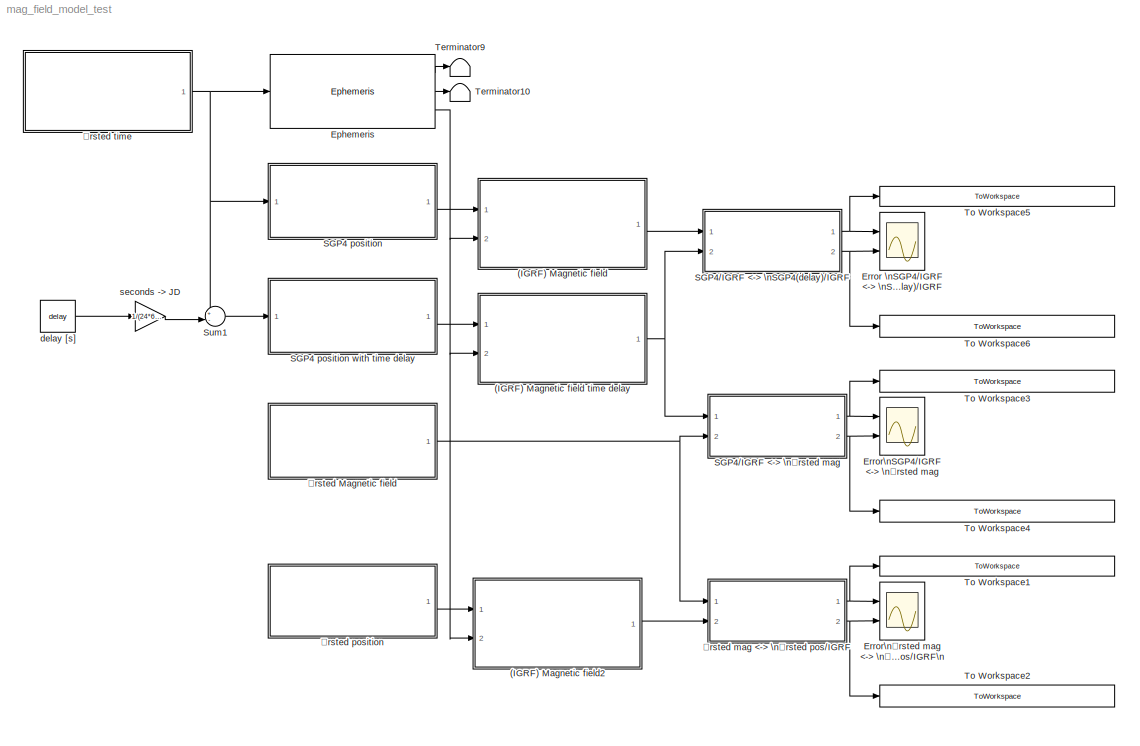
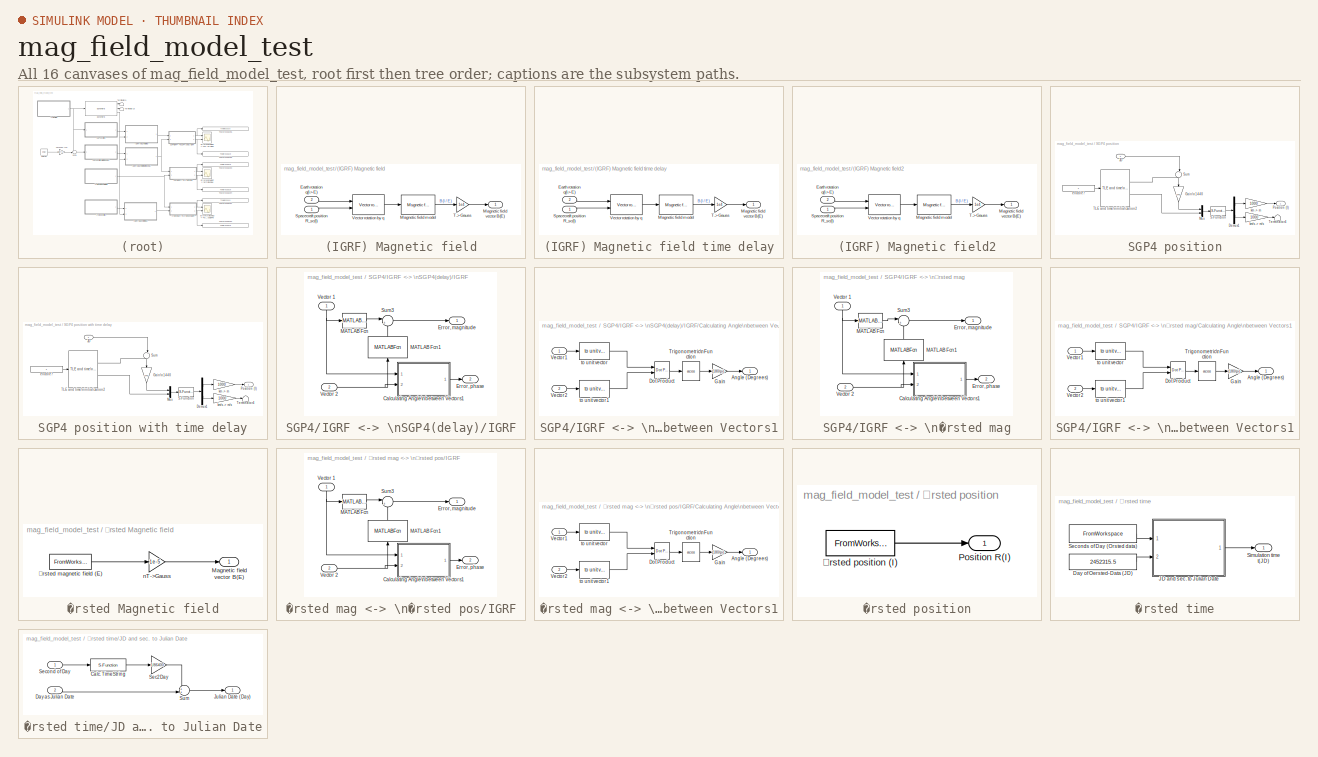
[diagram: thumbnail index - all 16 canvases of the model, root first then tree order]
MODEL mag_field_model_test
KIND model
BLOCK [SubSystem] (IGRF) Magnetic field
  AncestorBlock = orbit_and_magfield_models_lib/Orbit and Magnetic field models/(IGRF) Magnetic field
  MinAlgLoopOccurrences = off
  Ports = [2, 1]
  RTWSystemCode = Auto
  TreatAsAtomicUnit = on
BLOCK [SubSystem] (IGRF) Magnetic field time delay
  AncestorBlock = orbit_and_magfield_models_lib/Orbit and Magnetic field models/(IGRF) Magnetic field
  MinAlgLoopOccurrences = off
  Ports = [2, 1]
  RTWSystemCode = Auto
  TreatAsAtomicUnit = on
BLOCK [Inport] (IGRF) Magnetic field time delay/Earth rotation q(I->E)
  IconDisplay = Port number
  LatchInput = off
  Port = 2
BLOCK [Reference] (IGRF) Magnetic field time delay/Magnetic field model  REF=magnetic_field_model_lib/Msgnetic field model
  Ports = [1, 1]
  ShowPortLabels = on
  SourceBlock = magnetic_field_model_lib/Msgnetic field model
  SourceType = SubSystem
BLOCK [Outport] (IGRF) Magnetic field time delay/Magnetic field vector B(E)
  BusOutputAsStruct = off
  IconDisplay = Port number
BLOCK [Inport] (IGRF) Magnetic field time delay/Spacecraft position R_sc(I)
  IconDisplay = Port number
  LatchInput = off
  Port = 1
BLOCK [Gain] (IGRF) Magnetic field time delay/T->Gauss
  Gain = 1e4
BLOCK [Reference] (IGRF) Magnetic field time delay/Vector rotation by q  REF=components_lib/Math utilities/Vector operations/Vector rotation by q  (lib defined in mdl_419550584dda)
  Ports = [2, 1]
  ShowPortLabels = on
  SourceBlock = components_lib/Math utilities/Vector operations/Vector rotation by q
  SourceType = SubSystem
BLOCK [Inport] (IGRF) Magnetic field/Earth rotation q(I->E)
  IconDisplay = Port number
  LatchInput = off
  Port = 2
BLOCK [Reference] (IGRF) Magnetic field/Magnetic field model  REF=magnetic_field_model_lib/Msgnetic field model
  Ports = [1, 1]
  ShowPortLabels = on
  SourceBlock = magnetic_field_model_lib/Msgnetic field model
  SourceType = SubSystem
BLOCK [Outport] (IGRF) Magnetic field/Magnetic field vector B(E)
  BusOutputAsStruct = off
  IconDisplay = Port number
BLOCK [Inport] (IGRF) Magnetic field/Spacecraft position R_sc(I)
  IconDisplay = Port number
  LatchInput = off
  Port = 1
BLOCK [Gain] (IGRF) Magnetic field/T->Gauss
  Gain = 1e4
BLOCK [Reference] (IGRF) Magnetic field/Vector rotation by q  REF=components_lib/Math utilities/Vector operations/Vector rotation by q  (lib defined in mdl_419550584dda)
  Ports = [2, 1]
  ShowPortLabels = on
  SourceBlock = components_lib/Math utilities/Vector operations/Vector rotation by q
  SourceType = SubSystem
BLOCK [SubSystem] (IGRF) Magnetic field2
  AncestorBlock = orbit_and_magfield_models_lib/Orbit and Magnetic field models/(IGRF) Magnetic field
  MinAlgLoopOccurrences = off
  Ports = [2, 1]
  RTWSystemCode = Auto
  TreatAsAtomicUnit = on
BLOCK [Inport] (IGRF) Magnetic field2/Earth rotation q(I->E)
  IconDisplay = Port number
  LatchInput = off
  Port = 2
BLOCK [Reference] (IGRF) Magnetic field2/Magnetic field model  REF=magnetic_field_model_lib/Msgnetic field model
  Ports = [1, 1]
  ShowPortLabels = on
  SourceBlock = magnetic_field_model_lib/Msgnetic field model
  SourceType = SubSystem
BLOCK [Outport] (IGRF) Magnetic field2/Magnetic field vector B(E)
  BusOutputAsStruct = off
  IconDisplay = Port number
BLOCK [Inport] (IGRF) Magnetic field2/Spacecraft position R_sc(I)
  IconDisplay = Port number
  LatchInput = off
  Port = 1
BLOCK [Gain] (IGRF) Magnetic field2/T->Gauss
  Gain = 1e4
BLOCK [Reference] (IGRF) Magnetic field2/Vector rotation by q  REF=components_lib/Math utilities/Vector operations/Vector rotation by q  (lib defined in mdl_419550584dda)
  Ports = [2, 1]
  ShowPortLabels = on
  SourceBlock = components_lib/Math utilities/Vector operations/Vector rotation by q
  SourceType = SubSystem
BLOCK [Reference] Ephemeris  REF=ephemeris_lib/Ephemeris
  Ports = [1, 3]
  ShowPortLabels = on
  SourceBlock = ephemeris_lib/Ephemeris
  SourceType = SubSystem
BLOCK [Scope] Error \nSGP4//IGRF <-> \nSGP4(delay)//IGRF
  DataFormat = Structure
  LimitDataPoints = off
  NumInputPorts = 2
  Ports = [2]
  SaveName = ONBOARDerror
  TimeRange = 10000
  YMax = 900~2
  YMin = 0~0.8
  ZoomMode = yonly
BLOCK [Scope] Error\nSGP4//IGRF <-> \nØrsted mag
  DataFormat = Structure
  LimitDataPoints = off
  NumInputPorts = 2
  Ports = [2]
  SaveName = ONBOARDerror1
  TimeRange = 10000
  YMax = 45000~94.5
  YMin = 0~85.5
  ZoomMode = yonly
BLOCK [Scope] Error\nØrsted mag <-> \nØrsted pos//IGRF\n
  DataFormat = Structure
  LimitDataPoints = off
  NumInputPorts = 2
  Ports = [2]
  SaveName = ONBOARDerror2
  TimeRange = 10000
  YMax = 45000~94.5
  YMin = 0~85.5
  ZoomMode = yonly
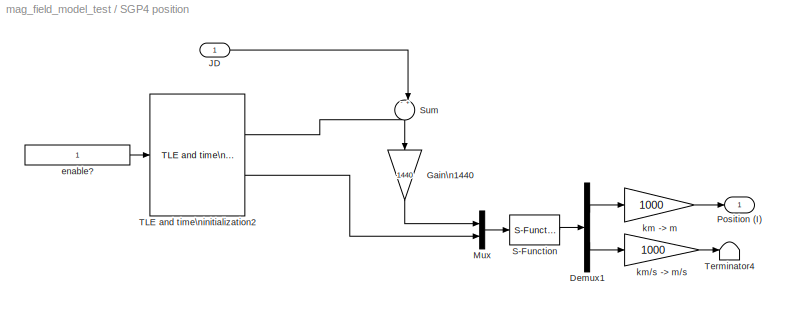
BLOCK [SubSystem] SGP4 position
  MinAlgLoopOccurrences = off
  Ports = [1, 1]
  RTWSystemCode = Auto
  TreatAsAtomicUnit = on
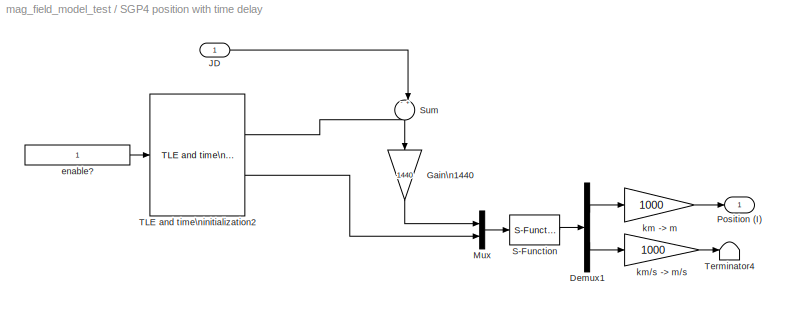
BLOCK [SubSystem] SGP4 position with time delay
  MinAlgLoopOccurrences = off
  Ports = [1, 1]
  RTWSystemCode = Auto
  TreatAsAtomicUnit = on
BLOCK [S-Function] SGP4 position with time delay/ S-Function
  FunctionName = sgp4S
  Ports = [1, 1]
BLOCK [Demux] SGP4 position with time delay/Demux1
  Outputs = [3 3]
  Ports = [1, 2]
BLOCK [Gain] SGP4 position with time delay/Gain\n1440
  Gain = 1440
BLOCK [Inport] SGP4 position with time delay/JD
  IconDisplay = Port number
  LatchInput = off
  Port = 1
BLOCK [Mux] SGP4 position with time delay/Mux
  DisplayOption = bar
  Inputs = 2
  Ports = [2, 1]
BLOCK [Outport] SGP4 position with time delay/Position (I)
  BusOutputAsStruct = off
  IconDisplay = Port number
  InitialOutput = 0
BLOCK [Sum] SGP4 position with time delay/Sum
  IconShape = round
  Inputs = -+|
  Ports = [2, 1]
BLOCK [Reference] SGP4 position with time delay/TLE and time\ninitialization2  REF=sgp4_igrf_lib/Orbit and Magnetic field models/TLE and time\ninitialization1
  JulianDay = 2452275.5+40.69255057
  Ports = [1, 2]
  ShowPortLabels = on
  SourceBlock = sgp4_igrf_lib/Orbit and Magnetic field models/TLE and time\ninitialization1
  YYDDD = 02039
  bstar = 0.00071190
  eo = 0.0148615
  omegao = 71.6037
  satname = 'Orsted'
  ts = 1
  xincl = 96.4788
  xmo = 290.1241
  xndd6o = 0
  xndt2o = 0.00002748*0
  xno = 14.43891950
  xnodeo = 112.1945
BLOCK [Terminator] SGP4 position with time delay/Terminator4
BLOCK [Constant] SGP4 position with time delay/enable?
BLOCK [Gain] SGP4 position with time delay/km -> m
  Gain = 1000
BLOCK [Gain] SGP4 position with time delay/km//s -> m//s
  Gain = 1000
BLOCK [S-Function] SGP4 position/ S-Function
  FunctionName = sgp4S
  Ports = [1, 1]
BLOCK [Demux] SGP4 position/Demux1
  Outputs = [3 3]
  Ports = [1, 2]
BLOCK [Gain] SGP4 position/Gain\n1440
  Gain = 1440
BLOCK [Inport] SGP4 position/JD
  IconDisplay = Port number
  LatchInput = off
  Port = 1
BLOCK [Mux] SGP4 position/Mux
  DisplayOption = bar
  Inputs = 2
  Ports = [2, 1]
BLOCK [Outport] SGP4 position/Position (I)
  BusOutputAsStruct = off
  IconDisplay = Port number
  InitialOutput = 0
BLOCK [Sum] SGP4 position/Sum
  IconShape = round
  Inputs = -+|
  Ports = [2, 1]
BLOCK [Reference] SGP4 position/TLE and time\ninitialization2  REF=sgp4_igrf_lib/Orbit and Magnetic field models/TLE and time\ninitialization1
  JulianDay = 2452275.5+40.69255057
  Ports = [1, 2]
  ShowPortLabels = on
  SourceBlock = sgp4_igrf_lib/Orbit and Magnetic field models/TLE and time\ninitialization1
  YYDDD = 02039
  bstar = 0.00071190
  eo = 0.0148615
  omegao = 71.6037
  satname = 'Orsted'
  ts = 1
  xincl = 96.4788
  xmo = 290.1241
  xndd6o = 0
  xndt2o = 0.00002748*0
  xno = 14.43891950
  xnodeo = 112.1945
BLOCK [Terminator] SGP4 position/Terminator4
BLOCK [Constant] SGP4 position/enable?
BLOCK [Gain] SGP4 position/km -> m
  Gain = 1000
BLOCK [Gain] SGP4 position/km//s -> m//s
  Gain = 1000
BLOCK [SubSystem] SGP4//IGRF <-> \nSGP4(delay)//IGRF
  MinAlgLoopOccurrences = off
  Ports = [2, 2]
  RTWSystemCode = Auto
  TreatAsAtomicUnit = off
BLOCK [SubSystem] SGP4//IGRF <-> \nSGP4(delay)//IGRF/Calculating Angle\nbetween Vectors1
  MinAlgLoopOccurrences = off
  Ports = [2, 1]
  RTWSystemCode = Auto
  TreatAsAtomicUnit = off
BLOCK [Outport] SGP4//IGRF <-> \nSGP4(delay)//IGRF/Calculating Angle\nbetween Vectors1/Angle (Degrees)
  BusOutputAsStruct = off
  IconDisplay = Port number
BLOCK [Reference] SGP4//IGRF <-> \nSGP4(delay)//IGRF/Calculating Angle\nbetween Vectors1/Dot Product  REF=simulink/Math\nOperations/Dot Product
  DoSatur = off
  InputSameDT = on
  LockScale = off
  OutDataType = sfix(16)
  OutScaling = 2^-10
  OutputDataTypeScalingMode = Inherit via internal rule
  Ports = [2, 1]
  RndMeth = Floor
  SourceBlock = simulink/Math\nOperations/Dot Product
  SourceType = Dot Product
BLOCK [Gain] SGP4//IGRF <-> \nSGP4(delay)//IGRF/Calculating Angle\nbetween Vectors1/Gain
  Gain = (180/pi)
BLOCK [Trigonometry] SGP4//IGRF <-> \nSGP4(delay)//IGRF/Calculating Angle\nbetween Vectors1/Trigonometric\nFunction
  Operator = acos
  Ports = [1, 1]
BLOCK [Inport] SGP4//IGRF <-> \nSGP4(delay)//IGRF/Calculating Angle\nbetween Vectors1/Vector1
  IconDisplay = Port number
  LatchInput = off
  Port = 1
BLOCK [Inport] SGP4//IGRF <-> \nSGP4(delay)//IGRF/Calculating Angle\nbetween Vectors1/Vector2
  IconDisplay = Port number
  LatchInput = off
  Port = 2
BLOCK [Reference] SGP4//IGRF <-> \nSGP4(delay)//IGRF/Calculating Angle\nbetween Vectors1/to unit vector  REF=components_lib/Math utilities/Vector operations/to unit vector  (lib defined in mdl_419550584dda)
  Ports = [1, 1]
  ShowPortLabels = on
  SourceBlock = components_lib/Math utilities/Vector operations/to unit vector
  SourceType = SubSystem
BLOCK [Reference] SGP4//IGRF <-> \nSGP4(delay)//IGRF/Calculating Angle\nbetween Vectors1/to unit vector1  REF=components_lib/Math utilities/Vector operations/to unit vector  (lib defined in mdl_419550584dda)
  Ports = [1, 1]
  ShowPortLabels = on
  SourceBlock = components_lib/Math utilities/Vector operations/to unit vector
  SourceType = SubSystem
BLOCK [Outport] SGP4//IGRF <-> \nSGP4(delay)//IGRF/Error, magnitude
  BusOutputAsStruct = off
  IconDisplay = Port number
BLOCK [Outport] SGP4//IGRF <-> \nSGP4(delay)//IGRF/Error, phase
  BusOutputAsStruct = off
  IconDisplay = Port number
  Port = 2
BLOCK [MATLABFcn] SGP4//IGRF <-> \nSGP4(delay)//IGRF/MATLAB Fcn
  MATLABFcn = norm
BLOCK [MATLABFcn] SGP4//IGRF <-> \nSGP4(delay)//IGRF/MATLAB Fcn1
  MATLABFcn = norm
BLOCK [Sum] SGP4//IGRF <-> \nSGP4(delay)//IGRF/Sum3
  IconShape = round
  Inputs = |+-
  Ports = [2, 1]
BLOCK [Inport] SGP4//IGRF <-> \nSGP4(delay)//IGRF/Vector 1
  IconDisplay = Port number
  LatchInput = off
  Port = 1
BLOCK [Inport] SGP4//IGRF <-> \nSGP4(delay)//IGRF/Vector 2
  IconDisplay = Port number
  LatchInput = off
  Port = 2
BLOCK [SubSystem] SGP4//IGRF <-> \nØrsted mag
  MinAlgLoopOccurrences = off
  Ports = [2, 2]
  RTWSystemCode = Auto
  TreatAsAtomicUnit = off
BLOCK [SubSystem] SGP4//IGRF <-> \nØrsted mag/Calculating Angle\nbetween Vectors1
  MinAlgLoopOccurrences = off
  Ports = [2, 1]
  RTWSystemCode = Auto
  TreatAsAtomicUnit = off
BLOCK [Outport] SGP4//IGRF <-> \nØrsted mag/Calculating Angle\nbetween Vectors1/Angle (Degrees)
  BusOutputAsStruct = off
  IconDisplay = Port number
BLOCK [Reference] SGP4//IGRF <-> \nØrsted mag/Calculating Angle\nbetween Vectors1/Dot Product  REF=simulink/Math\nOperations/Dot Product
  DoSatur = off
  InputSameDT = on
  LockScale = off
  OutDataType = sfix(16)
  OutScaling = 2^-10
  OutputDataTypeScalingMode = Inherit via internal rule
  Ports = [2, 1]
  RndMeth = Floor
  SourceBlock = simulink/Math\nOperations/Dot Product
  SourceType = Dot Product
BLOCK [Gain] SGP4//IGRF <-> \nØrsted mag/Calculating Angle\nbetween Vectors1/Gain
  Gain = (180/pi)
BLOCK [Trigonometry] SGP4//IGRF <-> \nØrsted mag/Calculating Angle\nbetween Vectors1/Trigonometric\nFunction
  Operator = acos
  Ports = [1, 1]
BLOCK [Inport] SGP4//IGRF <-> \nØrsted mag/Calculating Angle\nbetween Vectors1/Vector1
  IconDisplay = Port number
  LatchInput = off
  Port = 1
BLOCK [Inport] SGP4//IGRF <-> \nØrsted mag/Calculating Angle\nbetween Vectors1/Vector2
  IconDisplay = Port number
  LatchInput = off
  Port = 2
BLOCK [Reference] SGP4//IGRF <-> \nØrsted mag/Calculating Angle\nbetween Vectors1/to unit vector  REF=components_lib/Math utilities/Vector operations/to unit vector  (lib defined in mdl_419550584dda)
  Ports = [1, 1]
  ShowPortLabels = on
  SourceBlock = components_lib/Math utilities/Vector operations/to unit vector
  SourceType = SubSystem
BLOCK [Reference] SGP4//IGRF <-> \nØrsted mag/Calculating Angle\nbetween Vectors1/to unit vector1  REF=components_lib/Math utilities/Vector operations/to unit vector  (lib defined in mdl_419550584dda)
  Ports = [1, 1]
  ShowPortLabels = on
  SourceBlock = components_lib/Math utilities/Vector operations/to unit vector
  SourceType = SubSystem
BLOCK [Outport] SGP4//IGRF <-> \nØrsted mag/Error, magnitude
  BusOutputAsStruct = off
  IconDisplay = Port number
BLOCK [Outport] SGP4//IGRF <-> \nØrsted mag/Error, phase
  BusOutputAsStruct = off
  IconDisplay = Port number
  Port = 2
BLOCK [MATLABFcn] SGP4//IGRF <-> \nØrsted mag/MATLAB Fcn
  MATLABFcn = norm
BLOCK [MATLABFcn] SGP4//IGRF <-> \nØrsted mag/MATLAB Fcn1
  MATLABFcn = norm
BLOCK [Sum] SGP4//IGRF <-> \nØrsted mag/Sum3
  IconShape = round
  Inputs = |+-
  Ports = [2, 1]
BLOCK [Inport] SGP4//IGRF <-> \nØrsted mag/Vector 1
  IconDisplay = Port number
  LatchInput = off
  Port = 1
BLOCK [Inport] SGP4//IGRF <-> \nØrsted mag/Vector 2
  IconDisplay = Port number
  LatchInput = off
  Port = 2
BLOCK [Sum] Sum1
  IconShape = round
  Inputs = +-|
  Ports = [2, 1]
BLOCK [Terminator] Terminator10
BLOCK [Terminator] Terminator9
BLOCK [ToWorkspace] To Workspace1
  MaxDataPoints = inf
  SampleTime = -1
  SaveFormat = Array
  VariableName = mag_error_orsted_mag_orsted_pos_igrf
BLOCK [ToWorkspace] To Workspace2
  MaxDataPoints = inf
  SampleTime = -1
  SaveFormat = Array
  VariableName = phase_error_orsted_mag_orsted_pos_igrf
BLOCK [ToWorkspace] To Workspace3
  MaxDataPoints = inf
  SampleTime = -1
  SaveFormat = Array
  VariableName = mag_error_sgp4_igrf_orsted_mag
BLOCK [ToWorkspace] To Workspace4
  MaxDataPoints = inf
  SampleTime = -1
  SaveFormat = Array
  VariableName = phase_error_sgp4_igrf_orsted_mag
BLOCK [ToWorkspace] To Workspace5
  MaxDataPoints = inf
  SampleTime = -1
  SaveFormat = Array
  VariableName = mag_error_orsted_spg4_igrf_sgp4_delay_igrf
BLOCK [ToWorkspace] To Workspace6
  MaxDataPoints = inf
  SampleTime = -1
  SaveFormat = Array
  VariableName = phase_error_orsted_spg4_igrf_sgp4_delay_igrf
BLOCK [Constant] delay [s]
  Value = delay
BLOCK [Gain] seconds -> JD
  Gain = 1/(24*60*60)
BLOCK [SubSystem] Ørsted Magnetic field
  AncestorBlock = orbit_and_magfield_models_lib/Orbit and Magnetic field models/Ørsted Magnetic field
  MinAlgLoopOccurrences = off
  Ports = [0, 1]
  RTWSystemCode = Auto
  TreatAsAtomicUnit = on
BLOCK [Outport] Ørsted Magnetic field/Magnetic field vector B(E)
  BusOutputAsStruct = off
  IconDisplay = Port number
BLOCK [Gain] Ørsted Magnetic field/nT->Gauss
  Gain = 1e-5
BLOCK [FromWorkspace] Ørsted Magnetic field/Ørsted magnetic field (E)
  SampleTime = 1
  VariableName = [oersted_data.time.sample_number oersted_data.mag.ECEFRF(:,1) oersted_data.mag.ECEFRF(:,2) oersted_data.mag.ECEFRF(:,3)]
BLOCK [SubSystem] Ørsted mag <-> \nØrsted pos//IGRF
  MinAlgLoopOccurrences = off
  Ports = [2, 2]
  RTWSystemCode = Auto
  TreatAsAtomicUnit = off
BLOCK [SubSystem] Ørsted mag <-> \nØrsted pos//IGRF/Calculating Angle\nbetween Vectors1
  MinAlgLoopOccurrences = off
  Ports = [2, 1]
  RTWSystemCode = Auto
  TreatAsAtomicUnit = off
BLOCK [Outport] Ørsted mag <-> \nØrsted pos//IGRF/Calculating Angle\nbetween Vectors1/Angle (Degrees)
  BusOutputAsStruct = off
  IconDisplay = Port number
BLOCK [Reference] Ørsted mag <-> \nØrsted pos//IGRF/Calculating Angle\nbetween Vectors1/Dot Product  REF=simulink/Math\nOperations/Dot Product
  DoSatur = off
  InputSameDT = on
  LockScale = off
  OutDataType = sfix(16)
  OutScaling = 2^-10
  OutputDataTypeScalingMode = Inherit via internal rule
  Ports = [2, 1]
  RndMeth = Floor
  SourceBlock = simulink/Math\nOperations/Dot Product
  SourceType = Dot Product
BLOCK [Gain] Ørsted mag <-> \nØrsted pos//IGRF/Calculating Angle\nbetween Vectors1/Gain
  Gain = (180/pi)
BLOCK [Trigonometry] Ørsted mag <-> \nØrsted pos//IGRF/Calculating Angle\nbetween Vectors1/Trigonometric\nFunction
  Operator = acos
  Ports = [1, 1]
BLOCK [Inport] Ørsted mag <-> \nØrsted pos//IGRF/Calculating Angle\nbetween Vectors1/Vector1
  IconDisplay = Port number
  LatchInput = off
  Port = 1
BLOCK [Inport] Ørsted mag <-> \nØrsted pos//IGRF/Calculating Angle\nbetween Vectors1/Vector2
  IconDisplay = Port number
  LatchInput = off
  Port = 2
BLOCK [Reference] Ørsted mag <-> \nØrsted pos//IGRF/Calculating Angle\nbetween Vectors1/to unit vector  REF=components_lib/Math utilities/Vector operations/to unit vector  (lib defined in mdl_419550584dda)
  Ports = [1, 1]
  ShowPortLabels = on
  SourceBlock = components_lib/Math utilities/Vector operations/to unit vector
  SourceType = SubSystem
BLOCK [Reference] Ørsted mag <-> \nØrsted pos//IGRF/Calculating Angle\nbetween Vectors1/to unit vector1  REF=components_lib/Math utilities/Vector operations/to unit vector  (lib defined in mdl_419550584dda)
  Ports = [1, 1]
  ShowPortLabels = on
  SourceBlock = components_lib/Math utilities/Vector operations/to unit vector
  SourceType = SubSystem
BLOCK [Outport] Ørsted mag <-> \nØrsted pos//IGRF/Error, magnitude
  BusOutputAsStruct = off
  IconDisplay = Port number
BLOCK [Outport] Ørsted mag <-> \nØrsted pos//IGRF/Error, phase
  BusOutputAsStruct = off
  IconDisplay = Port number
  Port = 2
BLOCK [MATLABFcn] Ørsted mag <-> \nØrsted pos//IGRF/MATLAB Fcn
  MATLABFcn = norm
BLOCK [MATLABFcn] Ørsted mag <-> \nØrsted pos//IGRF/MATLAB Fcn1
  MATLABFcn = norm
BLOCK [Sum] Ørsted mag <-> \nØrsted pos//IGRF/Sum3
  IconShape = round
  Inputs = |+-
  Ports = [2, 1]
BLOCK [Inport] Ørsted mag <-> \nØrsted pos//IGRF/Vector 1
  IconDisplay = Port number
  LatchInput = off
  Port = 1
BLOCK [Inport] Ørsted mag <-> \nØrsted pos//IGRF/Vector 2
  IconDisplay = Port number
  LatchInput = off
  Port = 2
BLOCK [SubSystem] Ørsted position
  MinAlgLoopOccurrences = off
  Ports = [0, 1]
  RTWSystemCode = Auto
  TreatAsAtomicUnit = on
BLOCK [Outport] Ørsted position/Position R(I)
  BusOutputAsStruct = off
  IconDisplay = Port number
BLOCK [FromWorkspace] Ørsted position/Ørsted position (I)
  SampleTime = 1
  VariableName = [oersted_data.time.sample_number oersted_data.pos.ECIRF(:,1) oersted_data.pos.ECIRF(:,2) oersted_data.pos.ECIRF(:,3) ]
BLOCK [SubSystem] Ørsted time
  AncestorBlock = orbit_and_magfield_models_lib/Orbit and Magnetic field models/Ørsted time
  MinAlgLoopOccurrences = off
  Ports = [0, 1]
  RTWSystemCode = Auto
  TreatAsAtomicUnit = on
BLOCK [Constant] Ørsted time/Day of Oersted-Data  (JD)
  Value = 2452315.5
BLOCK [SubSystem] Ørsted time/JD and sec. to Julian Date
  MinAlgLoopOccurrences = off
  Ports = [2, 1]
  RTWSystemCode = Auto
  TreatAsAtomicUnit = off
BLOCK [S-Function] Ørsted time/JD and sec. to Julian Date/Calc. TimeString
  FunctionName = Qcontinuum
  Ports = [1, 1]
BLOCK [Inport] Ørsted time/JD and sec. to Julian Date/Day as Julian Date
  IconDisplay = Port number
  LatchInput = off
  Port = 2
BLOCK [Outport] Ørsted time/JD and sec. to Julian Date/Julian Date (Day)
  BusOutputAsStruct = off
  IconDisplay = Port number
BLOCK [Gain] Ørsted time/JD and sec. to Julian Date/Sec2Day
  Gain = 1/86400
BLOCK [Inport] Ørsted time/JD and sec. to Julian Date/Second of Day
  IconDisplay = Port number
  LatchInput = off
  Port = 1
BLOCK [Sum] Ørsted time/JD and sec. to Julian Date/Sum
  IconShape = round
  Inputs = ++|
  Ports = [2, 1]
BLOCK [FromWorkspace] Ørsted time/Seconds of Day (Orsted data)
  SampleTime = 1
  VariableName = [oersted_data.time.sample_number oersted_data.time.second oersted_data.time.day]
BLOCK [Outport] Ørsted time/Simulation time t(JD)
  BusOutputAsStruct = off
  IconDisplay = Port number
LINE (IGRF) Magnetic field time delay/Earth rotation q(I->E):1 -> (IGRF) Magnetic field time delay/Vector rotation by q:1
LINE (IGRF) Magnetic field time delay/Magnetic field model:1 -> (IGRF) Magnetic field time delay/T->Gauss:1
LINE (IGRF) Magnetic field time delay/Spacecraft position R_sc(I):1 -> (IGRF) Magnetic field time delay/Vector rotation by q:2
LINE (IGRF) Magnetic field time delay/T->Gauss:1 -> (IGRF) Magnetic field time delay/Magnetic field vector B(E):1
LINE (IGRF) Magnetic field time delay/Vector rotation by q:1 -> (IGRF) Magnetic field time delay/Magnetic field model:1
NET (IGRF) Magnetic field time delay:1 -> SGP4//IGRF <-> \nSGP4(delay)//IGRF:2, SGP4//IGRF <-> \nØrsted mag:1
LINE (IGRF) Magnetic field/Earth rotation q(I->E):1 -> (IGRF) Magnetic field/Vector rotation by q:1
LINE (IGRF) Magnetic field/Magnetic field model:1 -> (IGRF) Magnetic field/T->Gauss:1
LINE (IGRF) Magnetic field/Spacecraft position R_sc(I):1 -> (IGRF) Magnetic field/Vector rotation by q:2
LINE (IGRF) Magnetic field/T->Gauss:1 -> (IGRF) Magnetic field/Magnetic field vector B(E):1
LINE (IGRF) Magnetic field/Vector rotation by q:1 -> (IGRF) Magnetic field/Magnetic field model:1
LINE (IGRF) Magnetic field2/Earth rotation q(I->E):1 -> (IGRF) Magnetic field2/Vector rotation by q:1
LINE (IGRF) Magnetic field2/Magnetic field model:1 -> (IGRF) Magnetic field2/T->Gauss:1
LINE (IGRF) Magnetic field2/Spacecraft position R_sc(I):1 -> (IGRF) Magnetic field2/Vector rotation by q:2
LINE (IGRF) Magnetic field2/T->Gauss:1 -> (IGRF) Magnetic field2/Magnetic field vector B(E):1
LINE (IGRF) Magnetic field2/Vector rotation by q:1 -> (IGRF) Magnetic field2/Magnetic field model:1
LINE (IGRF) Magnetic field2:1 -> Ørsted mag <-> \nØrsted pos//IGRF:2
LINE (IGRF) Magnetic field:1 -> SGP4//IGRF <-> \nSGP4(delay)//IGRF:1
LINE Ephemeris:1 -> Terminator9:1
LINE Ephemeris:2 -> Terminator10:1
NET Ephemeris:3 -> (IGRF) Magnetic field time delay:2, (IGRF) Magnetic field2:2, (IGRF) Magnetic field:2
LINE SGP4 position with time delay/ S-Function:1 -> SGP4 position with time delay/Demux1:1
LINE SGP4 position with time delay/Demux1:1 -> SGP4 position with time delay/km -> m:1
LINE SGP4 position with time delay/Demux1:2 -> SGP4 position with time delay/km//s -> m//s:1
LINE SGP4 position with time delay/Gain\n1440:1 -> SGP4 position with time delay/Mux:1
LINE SGP4 position with time delay/JD:1 -> SGP4 position with time delay/Sum:2
LINE SGP4 position with time delay/Mux:1 -> SGP4 position with time delay/ S-Function:1
LINE SGP4 position with time delay/Sum:1 -> SGP4 position with time delay/Gain\n1440:1
LINE SGP4 position with time delay/TLE and time\ninitialization2:1 -> SGP4 position with time delay/Sum:1
LINE SGP4 position with time delay/TLE and time\ninitialization2:2 -> SGP4 position with time delay/Mux:2
LINE SGP4 position with time delay/enable?:1 -> SGP4 position with time delay/TLE and time\ninitialization2:1
LINE SGP4 position with time delay/km -> m:1 -> SGP4 position with time delay/Position (I):1
LINE SGP4 position with time delay/km//s -> m//s:1 -> SGP4 position with time delay/Terminator4:1
LINE SGP4 position with time delay:1 -> (IGRF) Magnetic field time delay:1
LINE SGP4 position/ S-Function:1 -> SGP4 position/Demux1:1
LINE SGP4 position/Demux1:1 -> SGP4 position/km -> m:1
LINE SGP4 position/Demux1:2 -> SGP4 position/km//s -> m//s:1
LINE SGP4 position/Gain\n1440:1 -> SGP4 position/Mux:1
LINE SGP4 position/JD:1 -> SGP4 position/Sum:2
LINE SGP4 position/Mux:1 -> SGP4 position/ S-Function:1
LINE SGP4 position/Sum:1 -> SGP4 position/Gain\n1440:1
LINE SGP4 position/TLE and time\ninitialization2:1 -> SGP4 position/Sum:1
LINE SGP4 position/TLE and time\ninitialization2:2 -> SGP4 position/Mux:2
LINE SGP4 position/enable?:1 -> SGP4 position/TLE and time\ninitialization2:1
LINE SGP4 position/km -> m:1 -> SGP4 position/Position (I):1
LINE SGP4 position/km//s -> m//s:1 -> SGP4 position/Terminator4:1
LINE SGP4 position:1 -> (IGRF) Magnetic field:1
LINE SGP4//IGRF <-> \nSGP4(delay)//IGRF/Calculating Angle\nbetween Vectors1/Dot Product:1 -> SGP4//IGRF <-> \nSGP4(delay)//IGRF/Calculating Angle\nbetween Vectors1/Trigonometric\nFunction:1
LINE SGP4//IGRF <-> \nSGP4(delay)//IGRF/Calculating Angle\nbetween Vectors1/Gain:1 -> SGP4//IGRF <-> \nSGP4(delay)//IGRF/Calculating Angle\nbetween Vectors1/Angle (Degrees):1
LINE SGP4//IGRF <-> \nSGP4(delay)//IGRF/Calculating Angle\nbetween Vectors1/Trigonometric\nFunction:1 -> SGP4//IGRF <-> \nSGP4(delay)//IGRF/Calculating Angle\nbetween Vectors1/Gain:1
LINE SGP4//IGRF <-> \nSGP4(delay)//IGRF/Calculating Angle\nbetween Vectors1/Vector1:1 -> SGP4//IGRF <-> \nSGP4(delay)//IGRF/Calculating Angle\nbetween Vectors1/to unit vector:1
LINE SGP4//IGRF <-> \nSGP4(delay)//IGRF/Calculating Angle\nbetween Vectors1/Vector2:1 -> SGP4//IGRF <-> \nSGP4(delay)//IGRF/Calculating Angle\nbetween Vectors1/to unit vector1:1
LINE SGP4//IGRF <-> \nSGP4(delay)//IGRF/Calculating Angle\nbetween Vectors1/to unit vector1:1 -> SGP4//IGRF <-> \nSGP4(delay)//IGRF/Calculating Angle\nbetween Vectors1/Dot Product:2
LINE SGP4//IGRF <-> \nSGP4(delay)//IGRF/Calculating Angle\nbetween Vectors1/to unit vector:1 -> SGP4//IGRF <-> \nSGP4(delay)//IGRF/Calculating Angle\nbetween Vectors1/Dot Product:1
LINE SGP4//IGRF <-> \nSGP4(delay)//IGRF/Calculating Angle\nbetween Vectors1:1 -> SGP4//IGRF <-> \nSGP4(delay)//IGRF/Error, phase:1
LINE SGP4//IGRF <-> \nSGP4(delay)//IGRF/MATLAB Fcn1:1 -> SGP4//IGRF <-> \nSGP4(delay)//IGRF/Sum3:2
LINE SGP4//IGRF <-> \nSGP4(delay)//IGRF/MATLAB Fcn:1 -> SGP4//IGRF <-> \nSGP4(delay)//IGRF/Sum3:1
LINE SGP4//IGRF <-> \nSGP4(delay)//IGRF/Sum3:1 -> SGP4//IGRF <-> \nSGP4(delay)//IGRF/Error, magnitude:1
NET SGP4//IGRF <-> \nSGP4(delay)//IGRF/Vector 1:1 -> SGP4//IGRF <-> \nSGP4(delay)//IGRF/Calculating Angle\nbetween Vectors1:1, SGP4//IGRF <-> \nSGP4(delay)//IGRF/MATLAB Fcn:1
NET SGP4//IGRF <-> \nSGP4(delay)//IGRF/Vector 2:1 -> SGP4//IGRF <-> \nSGP4(delay)//IGRF/Calculating Angle\nbetween Vectors1:2, SGP4//IGRF <-> \nSGP4(delay)//IGRF/MATLAB Fcn1:1
NET SGP4//IGRF <-> \nSGP4(delay)//IGRF:1 -> Error \nSGP4//IGRF <-> \nSGP4(delay)//IGRF:1, To Workspace5:1
NET SGP4//IGRF <-> \nSGP4(delay)//IGRF:2 -> Error \nSGP4//IGRF <-> \nSGP4(delay)//IGRF:2, To Workspace6:1
LINE SGP4//IGRF <-> \nØrsted mag/Calculating Angle\nbetween Vectors1/Dot Product:1 -> SGP4//IGRF <-> \nØrsted mag/Calculating Angle\nbetween Vectors1/Trigonometric\nFunction:1
LINE SGP4//IGRF <-> \nØrsted mag/Calculating Angle\nbetween Vectors1/Gain:1 -> SGP4//IGRF <-> \nØrsted mag/Calculating Angle\nbetween Vectors1/Angle (Degrees):1
LINE SGP4//IGRF <-> \nØrsted mag/Calculating Angle\nbetween Vectors1/Trigonometric\nFunction:1 -> SGP4//IGRF <-> \nØrsted mag/Calculating Angle\nbetween Vectors1/Gain:1
LINE SGP4//IGRF <-> \nØrsted mag/Calculating Angle\nbetween Vectors1/Vector1:1 -> SGP4//IGRF <-> \nØrsted mag/Calculating Angle\nbetween Vectors1/to unit vector:1
LINE SGP4//IGRF <-> \nØrsted mag/Calculating Angle\nbetween Vectors1/Vector2:1 -> SGP4//IGRF <-> \nØrsted mag/Calculating Angle\nbetween Vectors1/to unit vector1:1
LINE SGP4//IGRF <-> \nØrsted mag/Calculating Angle\nbetween Vectors1/to unit vector1:1 -> SGP4//IGRF <-> \nØrsted mag/Calculating Angle\nbetween Vectors1/Dot Product:2
LINE SGP4//IGRF <-> \nØrsted mag/Calculating Angle\nbetween Vectors1/to unit vector:1 -> SGP4//IGRF <-> \nØrsted mag/Calculating Angle\nbetween Vectors1/Dot Product:1
LINE SGP4//IGRF <-> \nØrsted mag/Calculating Angle\nbetween Vectors1:1 -> SGP4//IGRF <-> \nØrsted mag/Error, phase:1
LINE SGP4//IGRF <-> \nØrsted mag/MATLAB Fcn1:1 -> SGP4//IGRF <-> \nØrsted mag/Sum3:2
LINE SGP4//IGRF <-> \nØrsted mag/MATLAB Fcn:1 -> SGP4//IGRF <-> \nØrsted mag/Sum3:1
LINE SGP4//IGRF <-> \nØrsted mag/Sum3:1 -> SGP4//IGRF <-> \nØrsted mag/Error, magnitude:1
NET SGP4//IGRF <-> \nØrsted mag/Vector 1:1 -> SGP4//IGRF <-> \nØrsted mag/Calculating Angle\nbetween Vectors1:1, SGP4//IGRF <-> \nØrsted mag/MATLAB Fcn:1
NET SGP4//IGRF <-> \nØrsted mag/Vector 2:1 -> SGP4//IGRF <-> \nØrsted mag/Calculating Angle\nbetween Vectors1:2, SGP4//IGRF <-> \nØrsted mag/MATLAB Fcn1:1
NET SGP4//IGRF <-> \nØrsted mag:1 -> Error\nSGP4//IGRF <-> \nØrsted mag:1, To Workspace3:1
NET SGP4//IGRF <-> \nØrsted mag:2 -> Error\nSGP4//IGRF <-> \nØrsted mag:2, To Workspace4:1
LINE Sum1:1 -> SGP4 position with time delay:1
LINE delay [s]:1 -> seconds -> JD:1
LINE seconds -> JD:1 -> Sum1:2
LINE Ørsted Magnetic field/nT->Gauss:1 -> Ørsted Magnetic field/Magnetic field vector B(E):1
LINE Ørsted Magnetic field/Ørsted magnetic field (E):1 -> Ørsted Magnetic field/nT->Gauss:1
NET Ørsted Magnetic field:1 -> SGP4//IGRF <-> \nØrsted mag:2, Ørsted mag <-> \nØrsted pos//IGRF:1
LINE Ørsted mag <-> \nØrsted pos//IGRF/Calculating Angle\nbetween Vectors1/Dot Product:1 -> Ørsted mag <-> \nØrsted pos//IGRF/Calculating Angle\nbetween Vectors1/Trigonometric\nFunction:1
LINE Ørsted mag <-> \nØrsted pos//IGRF/Calculating Angle\nbetween Vectors1/Gain:1 -> Ørsted mag <-> \nØrsted pos//IGRF/Calculating Angle\nbetween Vectors1/Angle (Degrees):1
LINE Ørsted mag <-> \nØrsted pos//IGRF/Calculating Angle\nbetween Vectors1/Trigonometric\nFunction:1 -> Ørsted mag <-> \nØrsted pos//IGRF/Calculating Angle\nbetween Vectors1/Gain:1
LINE Ørsted mag <-> \nØrsted pos//IGRF/Calculating Angle\nbetween Vectors1/Vector1:1 -> Ørsted mag <-> \nØrsted pos//IGRF/Calculating Angle\nbetween Vectors1/to unit vector:1
LINE Ørsted mag <-> \nØrsted pos//IGRF/Calculating Angle\nbetween Vectors1/Vector2:1 -> Ørsted mag <-> \nØrsted pos//IGRF/Calculating Angle\nbetween Vectors1/to unit vector1:1
LINE Ørsted mag <-> \nØrsted pos//IGRF/Calculating Angle\nbetween Vectors1/to unit vector1:1 -> Ørsted mag <-> \nØrsted pos//IGRF/Calculating Angle\nbetween Vectors1/Dot Product:2
LINE Ørsted mag <-> \nØrsted pos//IGRF/Calculating Angle\nbetween Vectors1/to unit vector:1 -> Ørsted mag <-> \nØrsted pos//IGRF/Calculating Angle\nbetween Vectors1/Dot Product:1
LINE Ørsted mag <-> \nØrsted pos//IGRF/Calculating Angle\nbetween Vectors1:1 -> Ørsted mag <-> \nØrsted pos//IGRF/Error, phase:1
LINE Ørsted mag <-> \nØrsted pos//IGRF/MATLAB Fcn1:1 -> Ørsted mag <-> \nØrsted pos//IGRF/Sum3:2
LINE Ørsted mag <-> \nØrsted pos//IGRF/MATLAB Fcn:1 -> Ørsted mag <-> \nØrsted pos//IGRF/Sum3:1
LINE Ørsted mag <-> \nØrsted pos//IGRF/Sum3:1 -> Ørsted mag <-> \nØrsted pos//IGRF/Error, magnitude:1
NET Ørsted mag <-> \nØrsted pos//IGRF/Vector 1:1 -> Ørsted mag <-> \nØrsted pos//IGRF/Calculating Angle\nbetween Vectors1:1, Ørsted mag <-> \nØrsted pos//IGRF/MATLAB Fcn:1
NET Ørsted mag <-> \nØrsted pos//IGRF/Vector 2:1 -> Ørsted mag <-> \nØrsted pos//IGRF/Calculating Angle\nbetween Vectors1:2, Ørsted mag <-> \nØrsted pos//IGRF/MATLAB Fcn1:1
NET Ørsted mag <-> \nØrsted pos//IGRF:1 -> Error\nØrsted mag <-> \nØrsted pos//IGRF\n:1, To Workspace1:1
NET Ørsted mag <-> \nØrsted pos//IGRF:2 -> Error\nØrsted mag <-> \nØrsted pos//IGRF\n:2, To Workspace2:1
LINE Ørsted position/Ørsted position (I):1 -> Ørsted position/Position R(I):1
LINE Ørsted position:1 -> (IGRF) Magnetic field2:1
LINE Ørsted time/Day of Oersted-Data  (JD):1 -> Ørsted time/JD and sec. to Julian Date:2
LINE Ørsted time/JD and sec. to Julian Date/Calc. TimeString:1 -> Ørsted time/JD and sec. to Julian Date/Sec2Day:1
LINE Ørsted time/JD and sec. to Julian Date/Day as Julian Date:1 -> Ørsted time/JD and sec. to Julian Date/Sum:2
LINE Ørsted time/JD and sec. to Julian Date/Sec2Day:1 -> Ørsted time/JD and sec. to Julian Date/Sum:1
LINE Ørsted time/JD and sec. to Julian Date/Second of Day:1 -> Ørsted time/JD and sec. to Julian Date/Calc. TimeString:1
LINE Ørsted time/JD and sec. to Julian Date/Sum:1 -> Ørsted time/JD and sec. to Julian Date/Julian Date (Day):1
LINE Ørsted time/JD and sec. to Julian Date:1 -> Ørsted time/Simulation time t(JD):1
LINE Ørsted time/Seconds of Day (Orsted data):1 -> Ørsted time/JD and sec. to Julian Date:1
NET Ørsted time:1 -> Ephemeris:1, SGP4 position:1, Sum1:1
note: NET lines group one-source signal fan-out (src -> all destinations, sorted); 1:1 wires keep LINE
